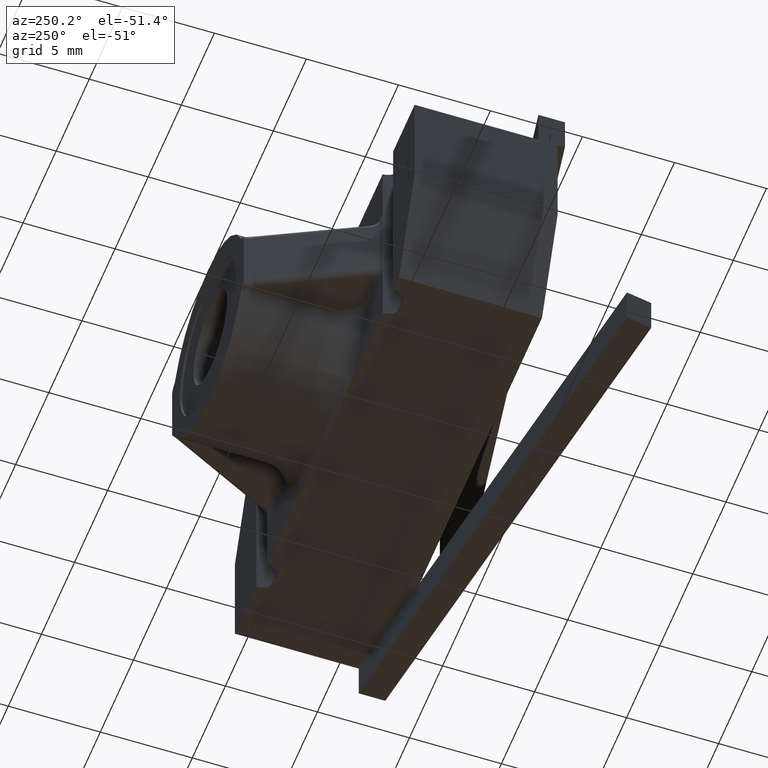
[diagram: clean part render]
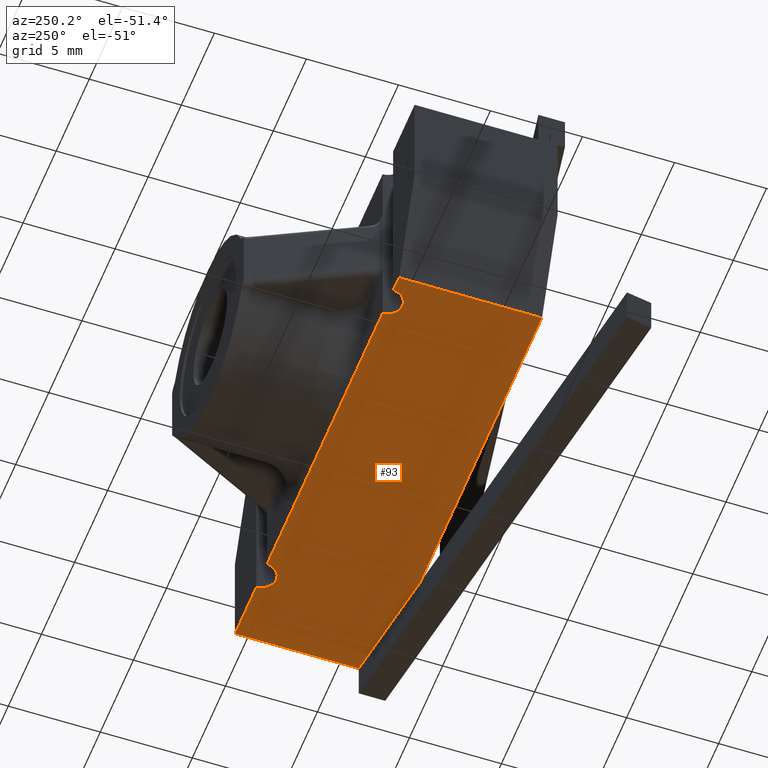
[diagram: same view with one face highlighted and labeled with its STEP entity id]
A machine part, auxiliary view. The second image highlights one B-rep face of the part: STEP entity #93.
In plain terms, the highlighted planar face has unit normal (0, 0, -1).
Its self-contained STEP definition (entity closure, byte-faithful):
#53 = LINE ( 'NONE', #3727, #57 ) ;
#57 = VECTOR ( 'NONE', #3728, 39.37007874015748100 ) ;
#61 = LINE ( 'NONE', #3729, #66 ) ;
#62 = LINE ( 'NONE', #3723, #64 ) ;
#64 = VECTOR ( 'NONE', #3730, 39.37007874015748100 ) ;
#66 = VECTOR ( 'NONE', #3732, 39.37007874015748100 ) ;
#93 = ADVANCED_FACE ( 'NONE', ( #1835 ), #520, .T. ) ;
#322 = CARTESIAN_POINT ( 'NONE',  ( -0.3749999999999999400, 0.0000000000000000000, -0.2239999999999999800 ) ) ;
#344 = CARTESIAN_POINT ( 'NONE',  ( 0.3750000000000000600, 0.0000000000000000000, -0.2239999999999999800 ) ) ;
#347 = CARTESIAN_POINT ( 'NONE',  ( -0.5605219988673189000, -0.4447411808841100200, -0.2239999999999999800 ) ) ;
#348 = DIRECTION ( 'NONE',  ( 0.9867646270694634400, 0.1621590909090905000, 0.0000000000000000000 ) ) ;
#349 = CARTESIAN_POINT ( 'NONE',  ( -0.5339999999999999200, 0.0000000000000000000, -0.2239999999999999800 ) ) ;
#350 = DIRECTION ( 'NONE',  ( -1.000000000000000000, -0.0000000000000000000, -0.0000000000000000000 ) ) ;
#353 = CARTESIAN_POINT ( 'NONE',  ( -0.5339999999999999200, 0.0000000000000000000, -0.2239999999999999800 ) ) ;
#354 = DIRECTION ( 'NONE',  ( -1.000000000000000000, -0.0000000000000000000, -0.0000000000000000000 ) ) ;
#355 = CARTESIAN_POINT ( 'NONE',  ( -0.5339999999999999200, -0.3059999999999999900, -0.2239999999999999800 ) ) ;
#356 = DIRECTION ( 'NONE',  ( -1.000000000000000000, -0.0000000000000000000, -0.0000000000000000000 ) ) ;
#359 = CARTESIAN_POINT ( 'NONE',  ( -0.5339999999999999200, 0.0000000000000000000, -0.2239999999999999800 ) ) ;
#360 = DIRECTION ( 'NONE',  ( -1.000000000000000000, -0.0000000000000000000, -0.0000000000000000000 ) ) ;
#361 = CARTESIAN_POINT ( 'NONE',  ( 0.5340000000000001400, -0.3059999999999999900, -0.2239999999999999800 ) ) ;
#362 = DIRECTION ( 'NONE',  ( 0.0000000000000000000, 1.000000000000000000, 0.0000000000000000000 ) ) ;
#365 = DIRECTION ( 'NONE',  ( 0.0000000000000000000, 0.0000000000000000000, 1.000000000000000000 ) ) ;
#366 = DIRECTION ( 'NONE',  ( 1.000000000000000000, 0.0000000000000000000, 0.0000000000000000000 ) ) ;
#368 = DIRECTION ( 'NONE',  ( 0.0000000000000000000, 0.0000000000000000000, 1.000000000000000000 ) ) ;
#369 = DIRECTION ( 'NONE',  ( 1.000000000000000000, 0.0000000000000000000, 0.0000000000000000000 ) ) ;
#467 = ORIENTED_EDGE ( 'NONE', *, *, #3773, .F. ) ;
#472 = ORIENTED_EDGE ( 'NONE', *, *, #3767, .F. ) ;
#473 = ORIENTED_EDGE ( 'NONE', *, *, #3771, .T. ) ;
#474 = ORIENTED_EDGE ( 'NONE', *, *, #2758, .T. ) ;
#475 = ORIENTED_EDGE ( 'NONE', *, *, #3768, .F. ) ;
#476 = ORIENTED_EDGE ( 'NONE', *, *, #3770, .F. ) ;
#477 = ORIENTED_EDGE ( 'NONE', *, *, #2756, .F. ) ;
#478 = ORIENTED_EDGE ( 'NONE', *, *, #3776, .T. ) ;
#479 = ORIENTED_EDGE ( 'NONE', *, *, #3774, .F. ) ;
#491 = ORIENTED_EDGE ( 'NONE', *, *, #2757, .F. ) ;
#497 = ORIENTED_EDGE ( 'NONE', *, *, #3777, .T. ) ;
#515 = CARTESIAN_POINT ( 'NONE',  ( -0.5339999999999999200, -0.3059999999999999900, -0.2239999999999999800 ) ) ;
#520 = PLANE ( 'NONE',  #3152 ) ;
#525 = DIRECTION ( 'NONE',  ( 0.0000000000000000000, 0.0000000000000000000, -1.000000000000000000 ) ) ;
#526 = DIRECTION ( 'NONE',  ( -1.000000000000000000, 0.0000000000000000000, -0.0000000000000000000 ) ) ;
#1087 = CARTESIAN_POINT ( 'NONE',  ( -0.1603878112575892700, 0.0000000000000000000, -0.2239999999999999800 ) ) ;
#1100 = CARTESIAN_POINT ( 'NONE',  ( 0.5340000000000001400, 0.0000000000000000000, -0.2239999999999999800 ) ) ;
#1101 = CARTESIAN_POINT ( 'NONE',  ( 0.3437500000000000600, 0.0000000000000000000, -0.2239999999999999800 ) ) ;
#1198 = VECTOR ( 'NONE', #360, 39.37007874015748100 ) ;
#1199 = LINE ( 'NONE', #361, #3272 ) ;
#1281 = AXIS2_PLACEMENT_3D ( 'NONE', #344, #368, #369 ) ;
#1282 = AXIS2_PLACEMENT_3D ( 'NONE', #322, #365, #366 ) ;
#1382 = EDGE_LOOP ( 'NONE', ( #479, #472, #473, #474, #475, #478, #476, #477, #491, #497, #467 ) ) ;
#1835 = FACE_OUTER_BOUND ( 'NONE', #1382, .T. ) ;
#2098 = VERTEX_POINT ( 'NONE', #3639 ) ;
#2100 = VERTEX_POINT ( 'NONE', #3634 ) ;
#2101 = VERTEX_POINT ( 'NONE', #3647 ) ;
#2111 = VERTEX_POINT ( 'NONE', #3657 ) ;
#2162 = VERTEX_POINT ( 'NONE', #3704 ) ;
#2163 = VERTEX_POINT ( 'NONE', #3705 ) ;
#2175 = VERTEX_POINT ( 'NONE', #3717 ) ;
#2176 = VERTEX_POINT ( 'NONE', #3718 ) ;
#2756 = EDGE_CURVE ( 'NONE', #2101, #3002, #53, .T. ) ;
#2757 = EDGE_CURVE ( 'NONE', #3041, #2101, #62, .T. ) ;
#2758 = EDGE_CURVE ( 'NONE', #2176, #2163, #61, .T. ) ;
#3002 = VERTEX_POINT ( 'NONE', #1087 ) ;
#3039 = VERTEX_POINT ( 'NONE', #1100 ) ;
#3041 = VERTEX_POINT ( 'NONE', #1101 ) ;
#3152 = AXIS2_PLACEMENT_3D ( 'NONE', #515, #525, #526 ) ;
#3246 = LINE ( 'NONE', #347, #3258 ) ;
#3258 = VECTOR ( 'NONE', #348, 39.37007874015748100 ) ;
#3261 = LINE ( 'NONE', #349, #3262 ) ;
#3262 = VECTOR ( 'NONE', #350, 39.37007874015748100 ) ;
#3265 = LINE ( 'NONE', #353, #3266 ) ;
#3266 = VECTOR ( 'NONE', #354, 39.37007874015748100 ) ;
#3267 = LINE ( 'NONE', #355, #3268 ) ;
#3268 = VECTOR ( 'NONE', #356, 39.37007874015748100 ) ;
#3271 = LINE ( 'NONE', #359, #1198 ) ;
#3272 = VECTOR ( 'NONE', #362, 39.37007874015748100 ) ;
#3275 = CIRCLE ( 'NONE', #1282, 0.03124999999999997600 ) ;
#3276 = CIRCLE ( 'NONE', #1281, 0.03124999999999997600 ) ;
#3634 = CARTESIAN_POINT ( 'NONE',  ( 0.4062500000000000000, 0.0000000000000000000, -0.2239999999999999800 ) ) ;
#3639 = CARTESIAN_POINT ( 'NONE',  ( 0.5340000000000001400, -0.2648738777325644300, -0.2239999999999999800 ) ) ;
#3647 = CARTESIAN_POINT ( 'NONE',  ( 0.1603878112575890000, 0.0000000000000000000, -0.2239999999999999200 ) ) ;
#3657 = CARTESIAN_POINT ( 'NONE',  ( -0.4062499999999999400, 0.0000000000000000000, -0.2239999999999999800 ) ) ;
#3704 = CARTESIAN_POINT ( 'NONE',  ( -0.3437500000000000000, 0.0000000000000000000, -0.2239999999999999800 ) ) ;
#3705 = CARTESIAN_POINT ( 'NONE',  ( -0.4409999999999999500, 0.0000000000000000000, -0.2239999999999999800 ) ) ;
#3717 = CARTESIAN_POINT ( 'NONE',  ( 0.2837408102467108800, -0.3059999999999998800, -0.2239999999999999800 ) ) ;
#3718 = CARTESIAN_POINT ( 'NONE',  ( -0.4409999999999998400, -0.3059999999999999900, -0.2239999999999999800 ) ) ;
#3723 = CARTESIAN_POINT ( 'NONE',  ( -0.5339999999999999200, 0.0000000000000000000, -0.2239999999999999800 ) ) ;
#3727 = CARTESIAN_POINT ( 'NONE',  ( -0.5339999999999999200, 0.0000000000000000000, -0.2239999999999999800 ) ) ;
#3728 = DIRECTION ( 'NONE',  ( -1.000000000000000000, -0.0000000000000000000, -0.0000000000000000000 ) ) ;
#3729 = CARTESIAN_POINT ( 'NONE',  ( -0.4409999999999999500, -0.3059999999999999900, -0.2239999999999999800 ) ) ;
#3730 = DIRECTION ( 'NONE',  ( -1.000000000000000000, -0.0000000000000000000, -0.0000000000000000000 ) ) ;
#3732 = DIRECTION ( 'NONE',  ( -0.0000000000000000000, 1.000000000000000000, -0.0000000000000000000 ) ) ;
#3767 = EDGE_CURVE ( 'NONE', #2175, #2098, #3246, .T. ) ;
#3768 = EDGE_CURVE ( 'NONE', #2111, #2163, #3261, .T. ) ;
#3770 = EDGE_CURVE ( 'NONE', #3002, #2162, #3265, .T. ) ;
#3771 = EDGE_CURVE ( 'NONE', #2175, #2176, #3267, .T. ) ;
#3773 = EDGE_CURVE ( 'NONE', #3039, #2100, #3271, .T. ) ;
#3774 = EDGE_CURVE ( 'NONE', #2098, #3039, #1199, .T. ) ;
#3776 = EDGE_CURVE ( 'NONE', #2111, #2162, #3275, .T. ) ;
#3777 = EDGE_CURVE ( 'NONE', #3041, #2100, #3276, .T. ) ;